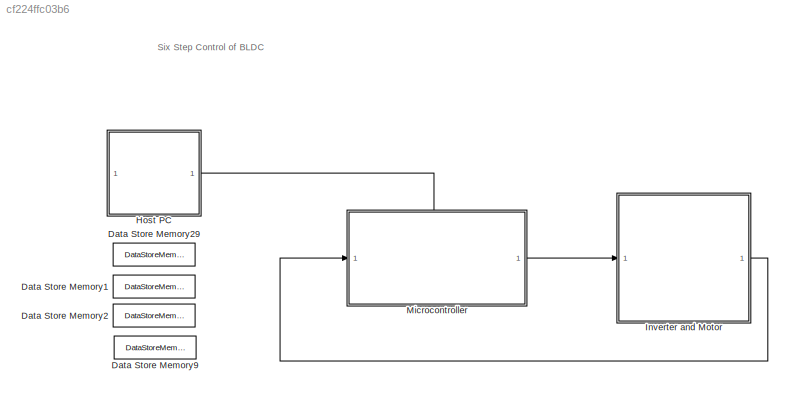
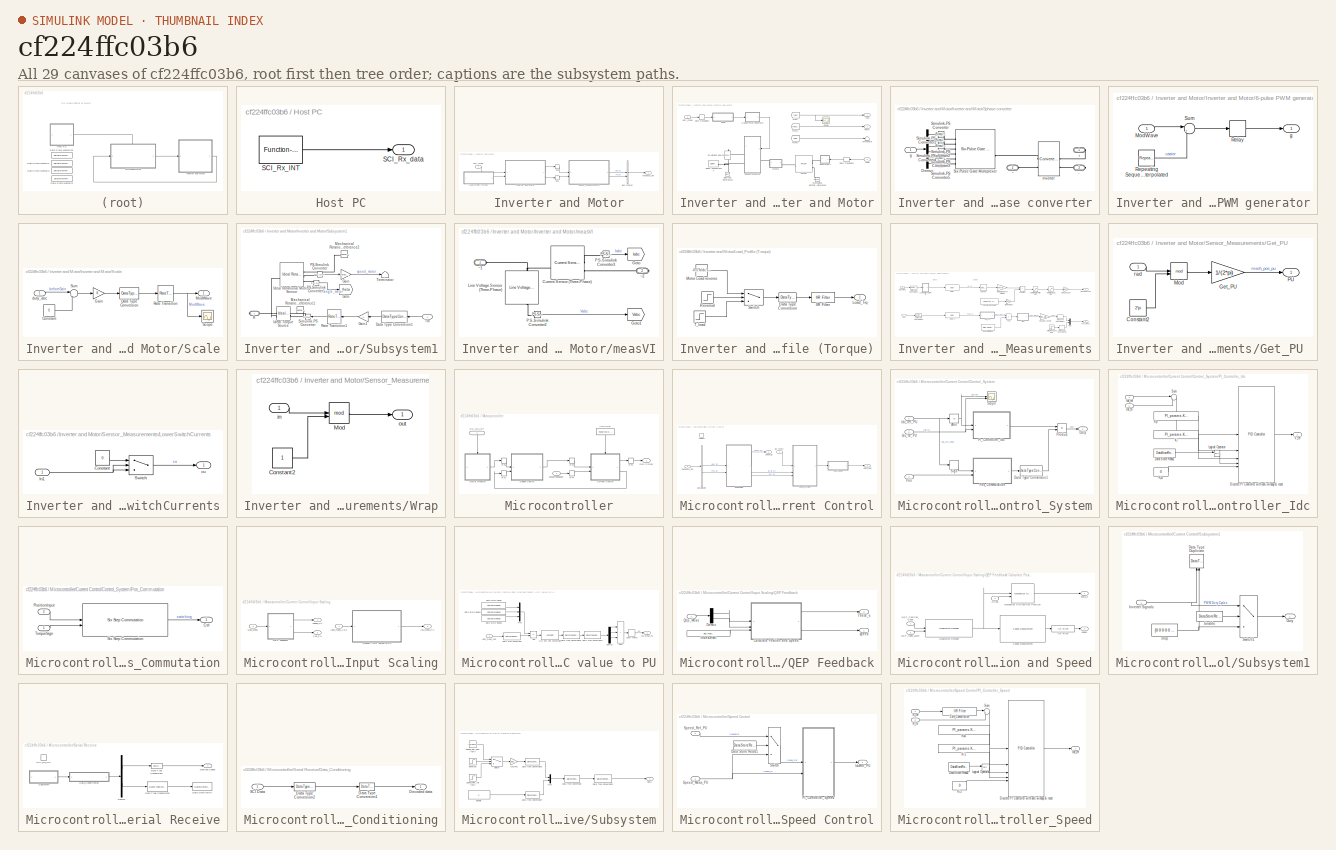
[diagram: thumbnail index - all 29 canvases of the model, root first then tree order]
MODEL slx_cf224ffc03b6
KIND model
CONFIG AbsTol = auto
CONFIG EnableMultiTasking = on
CONFIG FixedStep = auto
CONFIG InitFcn = mcb_bldc_sixstep_f28069mLaunchPad_data;
CONFIG MaxStep = auto
CONFIG MinStep = auto
CONFIG RelTol = 1e-3
CONFIG SampleTimeConstraint = Unconstrained
CONFIG SolverName = FixedStepDiscrete
CONFIG StartTime = 0.0
CONFIG StopTime = 2
BLOCK [DataStoreMemory] Data Store Memory1
  DataStoreName = IaOffset
  InitialValue = inverter.CtSensAOffset
  ShowAdditionalParam = off
BLOCK [DataStoreMemory] Data Store Memory2
  DataStoreName = IbOffset
  InitialValue = inverter.CtSensBOffset
  ShowAdditionalParam = off
BLOCK [DataStoreMemory] Data Store Memory29
  DataStoreName = Enable
  OutDataTypeStr = boolean
  ShowAdditionalParam = off
BLOCK [DataStoreMemory] Data Store Memory9
  DataStoreName = IcOffset
  InitialValue = inverter.CtSensCOffset
  NameLocation = top
  ShowAdditionalParam = off
BLOCK [SubSystem] Host PC
  NameLocation = top
BLOCK [Reference] Host PC/SCI_Rx_INT  REF=simulink/Ports &
Subsystems/Function-Call
Generator
  SourceBlock = simulink/Ports &\nSubsystems/Function-Call\nGenerator
  SourceType = Function-Call Generator
BLOCK [Outport] Host PC/SCI_Rx_data
BLOCK [SubSystem] Inverter and Motor
  RTWSystemCode = Reusable function
BLOCK [BusCreator] Inverter and Motor/Bus Creator
  DisplayOption = bar
  InheritFromInputs = on
  Inputs = 2
BLOCK [Inport] Inverter and Motor/Duty_Cycles
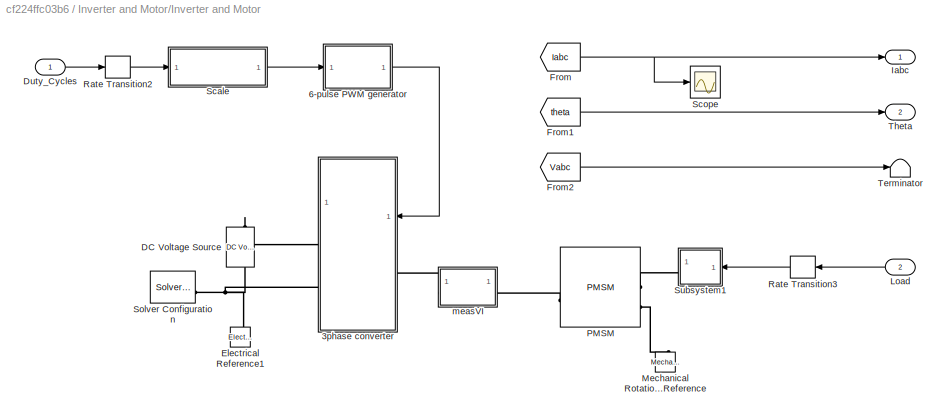
BLOCK [SubSystem] Inverter and Motor/Inverter and Motor
  VariantControl = get_param([bdroot '/Plant'],'Value')=='0'
BLOCK [SubSystem] Inverter and Motor/Inverter and Motor/3phase converter
  NameLocation = top
BLOCK [PMIOPort] Inverter and Motor/Inverter and Motor/3phase converter/+
  Side = Right
BLOCK [PMIOPort] Inverter and Motor/Inverter and Motor/3phase converter/-
  Port = 3
  Side = Right
BLOCK [Demux] Inverter and Motor/Inverter and Motor/3phase converter/Demux
  Outputs = 6
BLOCK [Reference] Inverter and Motor/Inverter and Motor/3phase converter/Inverter  REF=ee_lib/Semiconductors &
Converters/Converters/Converter
(Three-Phase)
  SourceBlock = ee_lib/Semiconductors &\nConverters/Converters/Converter\n(Three-Phase)
  SourceType = Converter\n(Three-Phase)
BLOCK [Reference] Inverter and Motor/Inverter and Motor/3phase converter/Simulink-PS Converter  REF=nesl_utility/Simulink-PS
Converter
  SourceBlock = nesl_utility/Simulink-PS\nConverter
  SourceType = Simulink-PS\nConverter
BLOCK [Reference] Inverter and Motor/Inverter and Motor/3phase converter/Simulink-PS Converter1  REF=nesl_utility/Simulink-PS
Converter
  SourceBlock = nesl_utility/Simulink-PS\nConverter
  SourceType = Simulink-PS\nConverter
BLOCK [Reference] Inverter and Motor/Inverter and Motor/3phase converter/Simulink-PS Converter2  REF=nesl_utility/Simulink-PS
Converter
  SourceBlock = nesl_utility/Simulink-PS\nConverter
  SourceType = Simulink-PS\nConverter
BLOCK [Reference] Inverter and Motor/Inverter and Motor/3phase converter/Simulink-PS Converter3  REF=nesl_utility/Simulink-PS
Converter
  SourceBlock = nesl_utility/Simulink-PS\nConverter
  SourceType = Simulink-PS\nConverter
BLOCK [Reference] Inverter and Motor/Inverter and Motor/3phase converter/Simulink-PS Converter4  REF=nesl_utility/Simulink-PS
Converter
  SourceBlock = nesl_utility/Simulink-PS\nConverter
  SourceType = Simulink-PS\nConverter
BLOCK [Reference] Inverter and Motor/Inverter and Motor/3phase converter/Simulink-PS Converter5  REF=nesl_utility/Simulink-PS
Converter
  SourceBlock = nesl_utility/Simulink-PS\nConverter
  SourceType = Simulink-PS\nConverter
BLOCK [Reference] Inverter and Motor/Inverter and Motor/3phase converter/Six-Pulse Gate Multiplexer  REF=ee_lib/Semiconductors &
Converters/Converters/Six-Pulse Gate
Multiplexer
  SourceBlock = ee_lib/Semiconductors &\nConverters/Converters/Six-Pulse Gate\nMultiplexer
  SourceType = Six-Pulse Gate\nMultiplexer
BLOCK [Inport] Inverter and Motor/Inverter and Motor/3phase converter/g
BLOCK [PMIOPort] Inverter and Motor/Inverter and Motor/3phase converter/~
  Port = 2
  Side = Left
BLOCK [SubSystem] Inverter and Motor/Inverter and Motor/6-pulse PWM generator
BLOCK [Inport] Inverter and Motor/Inverter and Motor/6-pulse PWM generator/ModWave
BLOCK [Relay] Inverter and Motor/Inverter and Motor/6-pulse PWM generator/Relay
BLOCK [Reference] Inverter and Motor/Inverter and Motor/6-pulse PWM generator/Repeating Sequence Interpolated  REF=simulink/Sources/Repeating
Sequence
Interpolated
  SourceBlock = simulink/Sources/Repeating\nSequence\nInterpolated
  SourceType = Repeating Sequence Interpolated
BLOCK [Sum] Inverter and Motor/Inverter and Motor/6-pulse PWM generator/Sum
  Inputs = |+-
BLOCK [Outport] Inverter and Motor/Inverter and Motor/6-pulse PWM generator/g
  NameLocation = top
BLOCK [Reference] Inverter and Motor/Inverter and Motor/DC Voltage Source  REF=fl_lib/Electrical/Electrical Sources/DC Voltage Source
  NameLocation = left
  SourceBlock = fl_lib/Electrical/Electrical Sources/DC Voltage Source
  SourceType = DC Voltage Source
BLOCK [Inport] Inverter and Motor/Inverter and Motor/Duty_Cycles
BLOCK [Reference] Inverter and Motor/Inverter and Motor/Electrical Reference1  REF=fl_lib/Electrical/Electrical Elements/Electrical Reference
  NameLocation = right
  SourceBlock = fl_lib/Electrical/Electrical Elements/Electrical Reference
  SourceType = Electrical Reference
BLOCK [From] Inverter and Motor/Inverter and Motor/From
  GotoTag = Iabc
  TagVisibility = global
BLOCK [From] Inverter and Motor/Inverter and Motor/From1
  GotoTag = theta
  TagVisibility = global
BLOCK [From] Inverter and Motor/Inverter and Motor/From2
  GotoTag = Vabc
  TagVisibility = global
BLOCK [Outport] Inverter and Motor/Inverter and Motor/Iabc
BLOCK [Inport] Inverter and Motor/Inverter and Motor/Load
  Port = 2
BLOCK [Reference] Inverter and Motor/Inverter and Motor/Mechanical Rotational Reference  REF=fl_lib/Mechanical/Rotational Elements/Mechanical
Rotational Reference
  NameLocation = right
  SourceBlock = fl_lib/Mechanical/Rotational Elements/Mechanical\nRotational Reference
  SourceType = Mechanical\nRotational Reference
BLOCK [Reference] Inverter and Motor/Inverter and Motor/PMSM  REF=ee_lib/Electromechanical/Permanent Magnet/PMSM
  SourceBlock = ee_lib/Electromechanical/Permanent Magnet/PMSM
  SourceType = PMSM
BLOCK [RateTransition] Inverter and Motor/Inverter and Motor/Rate Transition2
  Deterministic = off
  OutPortSampleTime = Ts_motor_simscape
BLOCK [RateTransition] Inverter and Motor/Inverter and Motor/Rate Transition3
  Deterministic = off
  NameLocation = top
  OutPortSampleTime = Ts_motor_simscape
BLOCK [SubSystem] Inverter and Motor/Inverter and Motor/Scale
BLOCK [Constant] Inverter and Motor/Inverter and Motor/Scale/Constant
  OutDataTypeStr = single
  SampleTime = Ts_motor_simscape
  Value = 0
BLOCK [DataTypeConversion] Inverter and Motor/Inverter and Motor/Scale/Data Type Conversion
  RndMeth = Floor
  SaturateOnIntegerOverflow = off
BLOCK [Gain] Inverter and Motor/Inverter and Motor/Scale/Gain
BLOCK [Outport] Inverter and Motor/Inverter and Motor/Scale/ModWave
BLOCK [RateTransition] Inverter and Motor/Inverter and Motor/Scale/Rate Transition
BLOCK [Scope] Inverter and Motor/Inverter and Motor/Scale/Scope
  Floating = off
  NumInputPorts = 1
  ScopeSpecificationString = Simulink.scopes.TimeScopeBlockCfg('CurrentConfiguration', extmgr.ConfigurationSet(extmgr.Configuration('Core','General UI',true),extmgr.Configuration('Core','Source UI',true),extmgr.Configuration('Sources','WiredSimulink',true,'DataLoggingVariableName','ScopeData1'),extmgr.Configuration('Visuals','Time Domain',true,'SerializedDisplays',{struct('MinYLimReal','-0.125','MaxYLimReal','1.125','YLabelRe...<+1481ch>
BLOCK [Sum] Inverter and Motor/Inverter and Motor/Scale/Sum
  Inputs = |++
BLOCK [Inport] Inverter and Motor/Inverter and Motor/Scale/duty_abc
BLOCK [Scope] Inverter and Motor/Inverter and Motor/Scope
  Floating = off
  NumInputPorts = 1
  ScopeSpecificationString = Simulink.scopes.TimeScopeBlockCfg('CurrentConfiguration', extmgr.ConfigurationSet(extmgr.Configuration('Core','General UI',true),extmgr.Configuration('Core','Source UI',true),extmgr.Configuration('Sources','WiredSimulink',true,'DataLoggingVariableName','ScopeData3'),extmgr.Configuration('Visuals','Time Domain',true,'SerializedDisplays',{struct('MinYLimReal','-27.85542','MaxYLimReal','27.85744','YL...<+1460ch>
BLOCK [Reference] Inverter and Motor/Inverter and Motor/Solver Configuration  REF=nesl_utility/Solver
Configuration
  SourceBlock = nesl_utility/Solver\nConfiguration
  SourceType = Solver\nConfiguration
BLOCK [SubSystem] Inverter and Motor/Inverter and Motor/Subsystem1
  NameLocation = top
BLOCK [DataTypeConversion] Inverter and Motor/Inverter and Motor/Subsystem1/Data Type Conversion1
  NameLocation = top
  RndMeth = Floor
  SaturateOnIntegerOverflow = off
BLOCK [Gain] Inverter and Motor/Inverter and Motor/Subsystem1/Gain
  Gain = 1/bldc.N_base
BLOCK [Gain] Inverter and Motor/Inverter and Motor/Subsystem1/Gain1
  Gain = -1
  NameLocation = top
BLOCK [Goto] Inverter and Motor/Inverter and Motor/Subsystem1/Goto
  GotoTag = theta
  TagVisibility = global
BLOCK [Reference] Inverter and Motor/Inverter and Motor/Subsystem1/Ideal Rotational Motion Sensor  REF=fl_lib/Mechanical/Mechanical Sensors/Ideal Rotational
Motion Sensor
  SourceBlock = fl_lib/Mechanical/Mechanical Sensors/Ideal Rotational\nMotion Sensor
  SourceType = Ideal Rotational\nMotion Sensor
BLOCK [Reference] Inverter and Motor/Inverter and Motor/Subsystem1/Ideal Torque Source  REF=fl_lib/Mechanical/Mechanical Sources/Ideal Torque Source
  NameLocation = top
  SourceBlock = fl_lib/Mechanical/Mechanical Sources/Ideal Torque Source
  SourceType = Ideal Torque Source
BLOCK [Reference] Inverter and Motor/Inverter and Motor/Subsystem1/Mechanical Rotational Reference1  REF=fl_lib/Mechanical/Rotational Elements/Mechanical
Rotational Reference
  NameLocation = top
  SourceBlock = fl_lib/Mechanical/Rotational Elements/Mechanical\nRotational Reference
  SourceType = Mechanical\nRotational Reference
BLOCK [Reference] Inverter and Motor/Inverter and Motor/Subsystem1/Mechanical Rotational Reference2  REF=fl_lib/Mechanical/Rotational Elements/Mechanical
Rotational Reference
  NameLocation = top
  SourceBlock = fl_lib/Mechanical/Rotational Elements/Mechanical\nRotational Reference
  SourceType = Mechanical\nRotational Reference
BLOCK [Reference] Inverter and Motor/Inverter and Motor/Subsystem1/PS-Simulink Converter  REF=nesl_utility/PS-Simulink
Converter
  SourceBlock = nesl_utility/PS-Simulink\nConverter
  SourceType = PS-Simulink\nConverter
BLOCK [Reference] Inverter and Motor/Inverter and Motor/Subsystem1/PS-Simulink Converter1  REF=nesl_utility/PS-Simulink
Converter
  SourceBlock = nesl_utility/PS-Simulink\nConverter
  SourceType = PS-Simulink\nConverter
BLOCK [PMIOPort] Inverter and Motor/Inverter and Motor/Subsystem1/R 
  Side = Right
BLOCK [RateTransition] Inverter and Motor/Inverter and Motor/Subsystem1/Rate Transition1
  NameLocation = top
BLOCK [Reference] Inverter and Motor/Inverter and Motor/Subsystem1/Simulink-PS Converter  REF=nesl_utility/Simulink-PS
Converter
  NameLocation = top
  SourceBlock = nesl_utility/Simulink-PS\nConverter
  SourceType = Simulink-PS\nConverter
BLOCK [Terminator] Inverter and Motor/Inverter and Motor/Subsystem1/Terminator
BLOCK [Inport] Inverter and Motor/Inverter and Motor/Subsystem1/Tm
BLOCK [Terminator] Inverter and Motor/Inverter and Motor/Terminator
BLOCK [Outport] Inverter and Motor/Inverter and Motor/Theta
  Port = 2
BLOCK [SubSystem] Inverter and Motor/Inverter and Motor/measVI
BLOCK [Reference] Inverter and Motor/Inverter and Motor/measVI/Current Sensor (Three-Phase)  REF=ee_lib/Sensors &
Transducers/Current Sensor
(Three-Phase)
  SourceBlock = ee_lib/Sensors &\nTransducers/Current Sensor\n(Three-Phase)
  SourceType = Current Sensor\n(Three-Phase)
BLOCK [Goto] Inverter and Motor/Inverter and Motor/measVI/Goto
  GotoTag = Iabc
  TagVisibility = global
BLOCK [Goto] Inverter and Motor/Inverter and Motor/measVI/Goto1
  GotoTag = Vabc
  TagVisibility = global
BLOCK [Reference] Inverter and Motor/Inverter and Motor/measVI/Line Voltage Sensor (Three-Phase)  REF=ee_lib/Sensors &
Transducers/Line Voltage Sensor
(Three-Phase)
  NameLocation = right
  SourceBlock = ee_lib/Sensors &\nTransducers/Line Voltage Sensor\n(Three-Phase)
  SourceType = Line Voltage Sensor\n(Three-Phase)
BLOCK [Reference] Inverter and Motor/Inverter and Motor/measVI/PS-Simulink Converter2  REF=nesl_utility/PS-Simulink
Converter
  SourceBlock = nesl_utility/PS-Simulink\nConverter
  SourceType = PS-Simulink\nConverter
BLOCK [Reference] Inverter and Motor/Inverter and Motor/measVI/PS-Simulink Converter3  REF=nesl_utility/PS-Simulink
Converter
  SourceBlock = nesl_utility/PS-Simulink\nConverter
  SourceType = PS-Simulink\nConverter
BLOCK [PMIOPort] Inverter and Motor/Inverter and Motor/measVI/~1
  Side = Left
BLOCK [PMIOPort] Inverter and Motor/Inverter and Motor/measVI/~2
  Port = 2
  Side = Right
BLOCK [SubSystem] Inverter and Motor/Load_Profile (Torque)
BLOCK [DataTypeConversion] Inverter and Motor/Load_Profile (Torque)/Data Type Conversion
  OutDataTypeStr = single
  RndMeth = Floor
  SaturateOnIntegerOverflow = off
BLOCK [Reference] Inverter and Motor/Load_Profile (Torque)/IIR Filter  REF=mcbcontrolslib/IIR Filter
  SourceBlock = mcbcontrolslib/IIR Filter
  SourceType = IIR Filter
BLOCK [Outport] Inverter and Motor/Load_Profile (Torque)/Load_Trq
  VectorParamsAs1DForOutWhenUnconnected = off
BLOCK [Constant] Inverter and Motor/Load_Profile (Torque)/Motor Load reverse 
  OutDataTypeStr = dataType
  SampleTime = -1
  Value = -0.5*bldc.T_rated
BLOCK [Step] Inverter and Motor/Load_Profile (Torque)/Reversal
  NameLocation = top
  Time = 1.2
BLOCK [Switch] Inverter and Motor/Load_Profile (Torque)/Switch
  Criteria = u2 > Threshold
  InputSameDT = off
  SaturateOnIntegerOverflow = off
BLOCK [Step] Inverter and Motor/Load_Profile (Torque)/T_load
  After = 0.5*bldc.T_rated
  Before = 0.05*bldc.T_rated
  SampleTime = Ts_simulink
  Time = 0.8
BLOCK [RateTransition] Inverter and Motor/RT1
  Deterministic = off
  OutPortSampleTime = Ts_simulink
BLOCK [RateTransition] Inverter and Motor/RT3
  Deterministic = off
  OutPortSampleTime = Ts_simulink
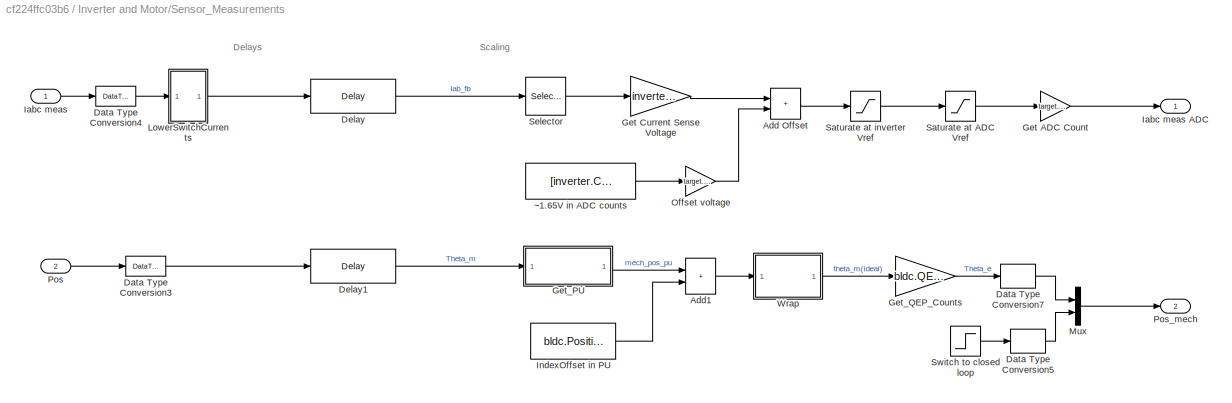
BLOCK [SubSystem] Inverter and Motor/Sensor_Measurements
BLOCK [Sum] Inverter and Motor/Sensor_Measurements/Add Offset
  IconShape = rectangular
  RndMeth = Simplest
BLOCK [Sum] Inverter and Motor/Sensor_Measurements/Add1
  IconShape = rectangular
  RndMeth = Simplest
BLOCK [DataTypeConversion] Inverter and Motor/Sensor_Measurements/Data Type Conversion3
  OutDataTypeStr = single
  RndMeth = Simplest
  SaturateOnIntegerOverflow = off
BLOCK [DataTypeConversion] Inverter and Motor/Sensor_Measurements/Data Type Conversion4
  OutDataTypeStr = single
  RndMeth = Simplest
  SaturateOnIntegerOverflow = off
BLOCK [DataTypeConversion] Inverter and Motor/Sensor_Measurements/Data Type Conversion5
  OutDataTypeStr = uint16
  RndMeth = Simplest
  SaturateOnIntegerOverflow = off
BLOCK [DataTypeConversion] Inverter and Motor/Sensor_Measurements/Data Type Conversion7
  OutDataTypeStr = uint16
  RndMeth = Simplest
  SaturateOnIntegerOverflow = off
BLOCK [Delay] Inverter and Motor/Sensor_Measurements/Delay
  DelayLength = PI_params.delay_Currents
  InputPortMap = u0
BLOCK [Delay] Inverter and Motor/Sensor_Measurements/Delay1
  DelayLength = PI_params.delay_Position
  InputPortMap = u0
BLOCK [Gain] Inverter and Motor/Sensor_Measurements/Get ADC Count
  Gain = target.ADC_MaxCount/target.ADC_Vref
  OutDataTypeStr = uint16
  OutMax = target.ADC_MaxCount
  OutMin = 0
  RndMeth = Simplest
BLOCK [Gain] Inverter and Motor/Sensor_Measurements/Get Current Sense Voltage
  Gain = inverter.ISenseVoltPerAmp
  OutDataTypeStr = Inherit: Same as input
  RndMeth = Simplest
BLOCK [SubSystem] Inverter and Motor/Sensor_Measurements/Get_PU 
BLOCK [Constant] Inverter and Motor/Sensor_Measurements/Get_PU /Constant2
  OutDataTypeStr = single
  SampleTime = -1
  Value = 2*pi
BLOCK [Gain] Inverter and Motor/Sensor_Measurements/Get_PU /Get_PU
  Gain = 1/(2*pi)
  OutDataTypeStr = Inherit: Same as input
  RndMeth = Simplest
BLOCK [Math] Inverter and Motor/Sensor_Measurements/Get_PU /Mod
  Operator = mod
BLOCK [Outport] Inverter and Motor/Sensor_Measurements/Get_PU /PU
  VectorParamsAs1DForOutWhenUnconnected = off
BLOCK [Inport] Inverter and Motor/Sensor_Measurements/Get_PU /rad
BLOCK [Gain] Inverter and Motor/Sensor_Measurements/Get_QEP_Counts
  Gain = bldc.QEPSlits*4
  OutDataTypeStr = uint16
  RndMeth = Simplest
BLOCK [Inport] Inverter and Motor/Sensor_Measurements/Iabc meas
BLOCK [Outport] Inverter and Motor/Sensor_Measurements/Iabc meas ADC
  VectorParamsAs1DForOutWhenUnconnected = off
BLOCK [Constant] Inverter and Motor/Sensor_Measurements/IndexOffset in PU
  OutDataTypeStr = single
  SampleTime = -1
  Value = bldc.PositionOffset
BLOCK [SubSystem] Inverter and Motor/Sensor_Measurements/LowerSwitchCurrents
BLOCK [Constant] Inverter and Motor/Sensor_Measurements/LowerSwitchCurrents/Constant
  Value = 0
BLOCK [Inport] Inverter and Motor/Sensor_Measurements/LowerSwitchCurrents/In1
BLOCK [Switch] Inverter and Motor/Sensor_Measurements/LowerSwitchCurrents/Switch
  Criteria = u2 > Threshold
  InputSameDT = off
  SaturateOnIntegerOverflow = off
BLOCK [Outport] Inverter and Motor/Sensor_Measurements/LowerSwitchCurrents/cu
BLOCK [Mux] Inverter and Motor/Sensor_Measurements/Mux
  DisplayOption = bar
  Inputs = 2
BLOCK [Gain] Inverter and Motor/Sensor_Measurements/Offset voltage
  Gain = target.ADC_Vref / target.ADC_MaxCount
  RndMeth = Simplest
BLOCK [Inport] Inverter and Motor/Sensor_Measurements/Pos
  Port = 2
BLOCK [Outport] Inverter and Motor/Sensor_Measurements/Pos_mech
  Port = 2
BLOCK [Saturate] Inverter and Motor/Sensor_Measurements/Saturate at ADC Vref
  LowerLimit = 0
  UpperLimit = target.ADC_Vref
BLOCK [Saturate] Inverter and Motor/Sensor_Measurements/Saturate at inverter Vref
  LowerLimit = 0
  UpperLimit = inverter.ISenseVref
BLOCK [Selector] Inverter and Motor/Sensor_Measurements/Selector
  IndexOptions = Index vector (dialog)
  Indices = [1 2 3]
  InputPortWidth = 3
  OutputSizes = 1
BLOCK [Step] Inverter and Motor/Sensor_Measurements/Switch to closed loop 
  SampleTime = Ts_motor
  Time = 0.1
BLOCK [SubSystem] Inverter and Motor/Sensor_Measurements/Wrap
BLOCK [Constant] Inverter and Motor/Sensor_Measurements/Wrap/Constant2
  OutDataTypeStr = single
  SampleTime = -1
BLOCK [Math] Inverter and Motor/Sensor_Measurements/Wrap/Mod
  Operator = mod
BLOCK [Inport] Inverter and Motor/Sensor_Measurements/Wrap/in
BLOCK [Outport] Inverter and Motor/Sensor_Measurements/Wrap/out
  VectorParamsAs1DForOutWhenUnconnected = off
BLOCK [Constant] Inverter and Motor/Sensor_Measurements/~1.65V in ADC counts
  OutDataTypeStr = single
  SampleTime = -1
  Value = [inverter.CtSensAOffset inverter.CtSensBOffset  inverter.CtSensCOffset]
BLOCK [Outport] Inverter and Motor/feedback_sim
  VectorParamsAs1DForOutWhenUnconnected = off
BLOCK [SubSystem] Microcontroller
  PortSchema = {"entries":[{"content":{"sides":[{"content":{"connectorIds":["In1"]},"type":"ConnectorPlacement.EquallySpacedRectSide","uuid":"7fcc6993-4b19-4580-b497-5639cbcc9e73"},{"content":{"connectorIds":["Out1"],"side":"RIGHT"},"type":"ConnectorPlacement.EquallySpacedRectSide","uuid":"c7ce9a8d-5ae1-4fef-a58c-ffb2688f7cf9"},{"content":{"connectorIds":["In2"],"side":"TOP"},"type":"ConnectorPlacement.EquallySp...<+245ch>
BLOCK [Reference] Microcontroller/ADCINT1  REF=simulink/Ports &
Subsystems/Function-Call
Generator
  NameLocation = top
  SourceBlock = simulink/Ports &\nSubsystems/Function-Call\nGenerator
  SourceType = Function-Call Generator
BLOCK [SubSystem] Microcontroller/Current Control
  RTWMemSecFuncExecute = code_ramfuncs
  RTWSystemCode = Nonreusable function
BLOCK [TriggerPort] Microcontroller/Current Control/ADCINT1
  PortDimensions = 1
  StatesWhenEnabling = held
  TriggerType = function-call
  VariantControl = Variant
BLOCK [BusSelector] Microcontroller/Current Control/Bus Selector
  OutputSignals = Iabc_fb,Pos_fb
BLOCK [SubSystem] Microcontroller/Current Control/Control_System
BLOCK [Abs] Microcontroller/Current Control/Control_System/Abs
  SaturateOnIntegerOverflow = off
BLOCK [DataTypeConversion] Microcontroller/Current Control/Control_System/Data Type Conversion1
  OutDataTypeStr = dataType
  RndMeth = Simplest
  SaturateOnIntegerOverflow = off
BLOCK [Outport] Microcontroller/Current Control/Control_System/Duty
  VectorParamsAs1DForOutWhenUnconnected = off
BLOCK [Inport] Microcontroller/Current Control/Control_System/Idc_fb_PU
  Port = 2
BLOCK [Inport] Microcontroller/Current Control/Control_System/Idc_ref_PU
BLOCK [SubSystem] Microcontroller/Current Control/Control_System/PI_Controller_Idc
BLOCK [DataStoreRead] Microcontroller/Current Control/Control_System/PI_Controller_Idc/Data Store Read1
  DataStoreName = Enable
  IndexOptions = Index vector (dialog)
  Indices = 1
  OutputSizes = 1
BLOCK [Reference] Microcontroller/Current Control/Control_System/PI_Controller_Idc/Discrete PI Controller with anti-windup & reset  REF=slpidlib/PID Controller
  LibrarySourceBlock = mcbcontrolslib/PI Controller
  SourceBlock = slpidlib/PID Controller
  SourceType = PID 1dof
BLOCK [Inport] Microcontroller/Current Control/Control_System/PI_Controller_Idc/Idc_fb
  Port = 2
BLOCK [Inport] Microcontroller/Current Control/Control_System/PI_Controller_Idc/Idc_ref
  NameLocation = top
BLOCK [Constant] Microcontroller/Current Control/Control_System/PI_Controller_Idc/Ki
  OutDataTypeStr = dataType
  SampleTime = -1
  Value = PI_params.Ki_i*Ts
BLOCK [Constant] Microcontroller/Current Control/Control_System/PI_Controller_Idc/Kp
  OutDataTypeStr = dataType
  SampleTime = -1
  Value = PI_params.Kp_i
BLOCK [Constant] Microcontroller/Current Control/Control_System/PI_Controller_Idc/Kp1
  NameLocation = top
  OutDataTypeStr = dataType
  SampleTime = -1
  Value = 0
BLOCK [Logic] Microcontroller/Current Control/Control_System/PI_Controller_Idc/Logical Operator
  AllPortsSameDT = off
  IconShape = distinctive
  Operator = NOT
  OutDataTypeStr = boolean
BLOCK [Sum] Microcontroller/Current Control/Control_System/PI_Controller_Idc/Sum
  AccumDataTypeStr = Inherit: Same as first input
  Inputs = |+-
  OutDataTypeStr = Inherit: Same as first input
BLOCK [Outport] Microcontroller/Current Control/Control_System/PI_Controller_Idc/V_ref
  VectorParamsAs1DForOutWhenUnconnected = off
BLOCK [Inport] Microcontroller/Current Control/Control_System/Pos
  Port = 3
BLOCK [SubSystem] Microcontroller/Current Control/Control_System/Pos_Commutation
BLOCK [Outport] Microcontroller/Current Control/Control_System/Pos_Commutation/Ctrl
BLOCK [Inport] Microcontroller/Current Control/Control_System/Pos_Commutation/PositionInput
  Port = 2
BLOCK [Reference] Microcontroller/Current Control/Control_System/Pos_Commutation/Six Step Commutation  REF=mcbcontrolslib/Six Step Commutation
  SourceBlock = mcbcontrolslib/Six Step Commutation
  SourceType = Six-Step Commutation
BLOCK [Inport] Microcontroller/Current Control/Control_System/Pos_Commutation/TorqueSign
BLOCK [Product] Microcontroller/Current Control/Control_System/Product
  OutDataTypeStr = Inherit: Same as first input
  RndMeth = Simplest
BLOCK [Scope] Microcontroller/Current Control/Control_System/Scope
  Floating = off
  NumInputPorts = 2
  ScopeSpecificationString = Simulink.scopes.TimeScopeBlockCfg('CurrentConfiguration', extmgr.ConfigurationSet(extmgr.Configuration('Core','General UI',true),extmgr.Configuration('Core','Source UI',true),extmgr.Configuration('Sources','WiredSimulink',true,'DataLoggingVariableName','ScopeData1'),extmgr.Configuration('Visuals','Time Domain',true),extmgr.Configuration('Tools','Plot Navigation',true),extmgr.Configuration('Tools',...<+40ch>
BLOCK [Signum] Microcontroller/Current Control/Control_System/Sign
BLOCK [Outport] Microcontroller/Current Control/Duty Cycles
  InitialOutput = 0
  VectorParamsAs1DForOutWhenUnconnected = off
BLOCK [Inport] Microcontroller/Current Control/Feedback_sim
  Port = 2
BLOCK [Inport] Microcontroller/Current Control/Idc_ref_PU
BLOCK [SubSystem] Microcontroller/Current Control/Input Scaling
BLOCK [SubSystem] Microcontroller/Current Control/Input Scaling/Convert ADC value to PU
BLOCK [Sum] Microcontroller/Current Control/Input Scaling/Convert ADC value to PU/Add
  IconShape = rectangular
  Inputs = -+
BLOCK [DataStoreRead] Microcontroller/Current Control/Input Scaling/Convert ADC value to PU/Data Store Read
  DataStoreName = IaOffset
  IndexOptions = Index vector (dialog)
  Indices = 1
  OutputSizes = 1
BLOCK [DataStoreRead] Microcontroller/Current Control/Input Scaling/Convert ADC value to PU/Data Store Read1
  DataStoreName = IbOffset
  IndexOptions = Index vector (dialog)
  Indices = 1
  OutputSizes = 1
BLOCK [DataStoreRead] Microcontroller/Current Control/Input Scaling/Convert ADC value to PU/Data Store Read2
  DataStoreName = IcOffset
  IndexOptions = Index vector (dialog)
  Indices = 1
  OutputSizes = 1
BLOCK [DataTypeConversion] Microcontroller/Current Control/Input Scaling/Convert ADC value to PU/Data Type Conversion
  ConvertRealWorld = Stored Integer (SI)
  OutDataTypeStr = int32
  RndMeth = Floor
  SaturateOnIntegerOverflow = off
BLOCK [DataTypeConversion] Microcontroller/Current Control/Input Scaling/Convert ADC value to PU/Data Type Conversion1
  OutDataTypeStr = dataType
  RndMeth = Floor
  SaturateOnIntegerOverflow = off
BLOCK [DataTypeConversion] Microcontroller/Current Control/Input Scaling/Convert ADC value to PU/Data Type Conversion3
  ConvertRealWorld = Stored Integer (SI)
  OutDataTypeStr = fixdt(1,32,17)
  RndMeth = Simplest
  SaturateOnIntegerOverflow = off
BLOCK [Demux] Microcontroller/Current Control/Input Scaling/Convert ADC value to PU/Demux
  Outputs = 3
BLOCK [Inport] Microcontroller/Current Control/Input Scaling/Convert ADC value to PU/Iabc_meas_ADC
BLOCK [Outport] Microcontroller/Current Control/Input Scaling/Convert ADC value to PU/Idc_meas_PU
BLOCK [Mux] Microcontroller/Current Control/Input Scaling/Convert ADC value to PU/Mux
  DisplayOption = bar
  Inputs = 3
BLOCK [ArithShift] Microcontroller/Current Control/Input Scaling/Convert ADC value to PU/Q17 per unit conversion
  BitShiftNumber = -6
  InputPortMap = u0
BLOCK [Sum] Microcontroller/Current Control/Input Scaling/Convert ADC value to PU/Sum
  IconShape = rectangular
  Inputs = |+++
BLOCK [UnaryMinus] Microcontroller/Current Control/Input Scaling/Convert ADC value to PU/Unary Minus
BLOCK [Inport] Microcontroller/Current Control/Input Scaling/Iabc_meas_ADC
BLOCK [Outport] Microcontroller/Current Control/Input Scaling/Idc_meas_PU
  Port = 2
  VectorParamsAs1DForOutWhenUnconnected = off
BLOCK [Outport] Microcontroller/Current Control/Input Scaling/Pos_PU
  InitialOutput = 0
  Port = 3
  VectorParamsAs1DForOutWhenUnconnected = off
BLOCK [SubSystem] Microcontroller/Current Control/Input Scaling/QEP Feedback
  TreatAsAtomicUnit = on
BLOCK [SubSystem] Microcontroller/Current Control/Input Scaling/QEP Feedback/ Calculate Position and Speed
BLOCK [Reference] Microcontroller/Current Control/Input Scaling/QEP Feedback/ Calculate Position and Speed/IIR Filter  REF=mcbcontrolslib/IIR Filter
  SourceBlock = mcbcontrolslib/IIR Filter
  SourceType = IIR Filter
BLOCK [Reference] Microcontroller/Current Control/Input Scaling/QEP Feedback/ Calculate Position and Speed/Mechanical to Electrical Position  REF=mcbpositiondecoderlib/Mechanical to Electrical Position
  SourceBlock = mcbpositiondecoderlib/Mechanical to Electrical Position
  SourceType = Mechanical to Electrical Position
BLOCK [Inport] Microcontroller/Current Control/Input Scaling/QEP Feedback/ Calculate Position and Speed/Offset
  Port = 3
BLOCK [Inport] Microcontroller/Current Control/Input Scaling/QEP Feedback/ Calculate Position and Speed/QEP_Index_Latch
  Port = 2
BLOCK [Inport] Microcontroller/Current Control/Input Scaling/QEP Feedback/ Calculate Position and Speed/QEP_Position_Count
BLOCK [Reference] Microcontroller/Current Control/Input Scaling/QEP Feedback/ Calculate Position and Speed/Quadrature Decoder  REF=mcbpositiondecoderlib/Quadrature Decoder
  SourceBlock = mcbpositiondecoderlib/Quadrature Decoder
  SourceType = Quadrature Decoder
BLOCK [Reference] Microcontroller/Current Control/Input Scaling/QEP Feedback/ Calculate Position and Speed/Speed Measurement  REF=mcbpositiondecoderlib/Speed Measurement
  SourceBlock = mcbpositiondecoderlib/Speed Measurement
  SourceType = Speed Measurement
BLOCK [Outport] Microcontroller/Current Control/Input Scaling/QEP Feedback/ Calculate Position and Speed/Theta_e
  VectorParamsAs1DForOutWhenUnconnected = off
BLOCK [Outport] Microcontroller/Current Control/Input Scaling/QEP Feedback/ Calculate Position and Speed/speed
  Port = 2
  VectorParamsAs1DForOutWhenUnconnected = off
BLOCK [Demux] Microcontroller/Current Control/Input Scaling/QEP Feedback/Demux
  Outputs = 2
BLOCK [Constant] Microcontroller/Current Control/Input Scaling/QEP Feedback/IndexOffset
  OutDataTypeStr = dataType
  SampleTime = -1
  Value = bldc.PositionOffset
BLOCK [Inport] Microcontroller/Current Control/Input Scaling/QEP Feedback/Qep_Meas
BLOCK [Outport] Microcontroller/Current Control/Input Scaling/QEP Feedback/Theta_e
  Port = 2
BLOCK [Outport] Microcontroller/Current Control/Input Scaling/QEP Feedback/speed
BLOCK [Inport] Microcontroller/Current Control/Input Scaling/Qep_Meas
  Port = 2
BLOCK [Outport] Microcontroller/Current Control/Input Scaling/speed_PU
  InitialOutput = 0
  VectorParamsAs1DForOutWhenUnconnected = off
BLOCK [Outport] Microcontroller/Current Control/Speed_fb
  InitialOutput = 0
  Port = 2
  VectorParamsAs1DForOutWhenUnconnected = off
BLOCK [SubSystem] Microcontroller/Current Control/Subsystem1
BLOCK [DataTypeDuplicate] Microcontroller/Current Control/Subsystem1/Data Type Duplicate
BLOCK [Outport] Microcontroller/Current Control/Subsystem1/Duty
  VectorParamsAs1DForOutWhenUnconnected = off
BLOCK [DataStoreRead] Microcontroller/Current Control/Subsystem1/Enable
  DataStoreName = Enable
  IndexOptions = Index vector (dialog)
  Indices = 1
  OutputSizes = 1
BLOCK [Inport] Microcontroller/Current Control/Subsystem1/Inverter Signals
BLOCK [Switch] Microcontroller/Current Control/Subsystem1/Switch1
  InputSameDT = off
  RndMeth = Simplest
  SaturateOnIntegerOverflow = off
  Threshold = 0.5
BLOCK [Constant] Microcontroller/Current Control/Subsystem1/stop
  OutDataTypeStr = Inherit: Inherit via back propagation
  Value = [0 0 0 0 0 0]
BLOCK [Outport] Microcontroller/Duty Cycles
BLOCK [RateTransition] Microcontroller/RT1
  Deterministic = off
  NameLocation = top
  OutPortSampleTime = Ts_speed
BLOCK [RateTransition] Microcontroller/RT2
  Deterministic = off
BLOCK [RateTransition] Microcontroller/RT3
  Deterministic = off
BLOCK [RateTransition] Microcontroller/RT4
  Deterministic = off
BLOCK [RateTransition] Microcontroller/RT6
  Deterministic = off
BLOCK [Inport] Microcontroller/SCI_Rx_INT
  NameLocation = top
  Port = 2
BLOCK [SubSystem] Microcontroller/Serial Receive
  RTWMemSecFuncExecute = code_ramfuncs
  SystemSampleTime = 1e-3
BLOCK [DataStoreWrite] Microcontroller/Serial Receive/Data Store Write
  DataStoreName = Enable
  IndexOptions = Index vector (dialog)
  Indices = 1
  OutputSizes = 1
BLOCK [DataTypeConversion] Microcontroller/Serial Receive/Data Type Conversion1
  OutDataTypeStr = dataType
  RndMeth = Simplest
  SaturateOnIntegerOverflow = off
BLOCK [DataTypeConversion] Microcontroller/Serial Receive/Data Type Conversion3
  OutDataTypeStr = boolean
  RndMeth = Simplest
  SaturateOnIntegerOverflow = off
BLOCK [SubSystem] Microcontroller/Serial Receive/Data_Conditioning
BLOCK [DataTypeConversion] Microcontroller/Serial Receive/Data_Conditioning/Data Type Conversion1
  OutDataTypeStr = single
  RndMeth = Simplest
  SaturateOnIntegerOverflow = off
BLOCK [DataTypeConversion] Microcontroller/Serial Receive/Data_Conditioning/Data Type Conversion2
  ConvertRealWorld = Stored Integer (SI)
  OutDataTypeStr = fixdt(1,16,12)
  RndMeth = Simplest
  SaturateOnIntegerOverflow = off
BLOCK [Outport] Microcontroller/Serial Receive/Data_Conditioning/Decoded data
  VectorParamsAs1DForOutWhenUnconnected = off
BLOCK [Inport] Microcontroller/Serial Receive/Data_Conditioning/SCI Data
BLOCK [Demux] Microcontroller/Serial Receive/Demux
  Outputs = 2
BLOCK [Outport] Microcontroller/Serial Receive/Desired Speed
  VectorParamsAs1DForOutWhenUnconnected = off
BLOCK [TriggerPort] Microcontroller/Serial Receive/SCI_Rx_INT
  StatesWhenEnabling = held
  TriggerType = function-call
  VariantControl = Variant
BLOCK [SubSystem] Microcontroller/Serial Receive/Subsystem
BLOCK [Outport] Microcontroller/Serial Receive/Subsystem/Data
BLOCK [DataTypeConversion] Microcontroller/Serial Receive/Subsystem/Data Type Conversion
  OutDataTypeStr = fixdt(1,16,12)
  RndMeth = Simplest
  SaturateOnIntegerOverflow = off
BLOCK [DataTypeConversion] Microcontroller/Serial Receive/Subsystem/Data Type Conversion2
  OutDataTypeStr = single
  RndMeth = Simplest
  SaturateOnIntegerOverflow = off
BLOCK [DataTypeConversion] Microcontroller/Serial Receive/Subsystem/Data Type Conversion3
  ConvertRealWorld = Stored Integer (SI)
  OutDataTypeStr = uint16
  RndMeth = Simplest
  SaturateOnIntegerOverflow = off
BLOCK [DataTypeConversion] Microcontroller/Serial Receive/Subsystem/Data Type Conversion4
  OutDataTypeStr = single
  RndMeth = Simplest
  SaturateOnIntegerOverflow = off
BLOCK [Constant] Microcontroller/Serial Receive/Subsystem/Enable
  OutDataTypeStr = dataType
  SampleTime = -1
BLOCK [Mux] Microcontroller/Serial Receive/Subsystem/Mux
  DisplayOption = bar
  Inputs = 2
BLOCK [Step] Microcontroller/Serial Receive/Subsystem/Reversal
  Time = 1.2
BLOCK [Constant] Microcontroller/Serial Receive/Subsystem/Speed_Ref_Final (rpm)
  OutDataTypeStr = dataType
  SampleTime = -1
  Value = -0.8*bldc.N_base
BLOCK [Step] Microcontroller/Serial Receive/Subsystem/Speed_Ref_Init (rpm)
  After = 0.8*bldc.N_base
  Before = 0.2*bldc.N_base
  Time = 0.5
BLOCK [Switch] Microcontroller/Serial Receive/Subsystem/Switch
  Criteria = u2 > Threshold
  InputSameDT = off
  SaturateOnIntegerOverflow = off
BLOCK [Gain] Microcontroller/Serial Receive/Subsystem/rpm2PU
  Gain = 1/bldc.N_base
  OutDataTypeStr = Inherit: Same as input
  RndMeth = Simplest
BLOCK [SubSystem] Microcontroller/Speed Control
  RTWSystemCode = Reusable function
  SystemSampleTime = Ts_speed
  TreatAsAtomicUnit = on
BLOCK [DataStoreRead] Microcontroller/Speed Control/Data Store Read1
  DataStoreName = Enable
  IndexOptions = Index vector (dialog)
  Indices = 1
  OutputSizes = 1
BLOCK [Outport] Microcontroller/Speed Control/IdcRef_PU
  VectorParamsAs1DForOutWhenUnconnected = off
BLOCK [SubSystem] Microcontroller/Speed Control/PI_Controller_Speed
BLOCK [DataStoreRead] Microcontroller/Speed Control/PI_Controller_Speed/Data Store Read2
  DataStoreName = Enable
  IndexOptions = Index vector (dialog)
  Indices = 1
  OutputSizes = 1
BLOCK [Reference] Microcontroller/Speed Control/PI_Controller_Speed/Discrete PI Controller with anti-windup & reset  REF=slpidlib/PID Controller
  LibrarySourceBlock = mcbcontrolslib/PI Controller
  SourceBlock = slpidlib/PID Controller
  SourceType = PID 1dof
BLOCK [Outport] Microcontroller/Speed Control/PI_Controller_Speed/Idc_ref
  VectorParamsAs1DForOutWhenUnconnected = off
BLOCK [Constant] Microcontroller/Speed Control/PI_Controller_Speed/Ki1
  NameLocation = top
  OutDataTypeStr = dataType
  SampleTime = -1
  Value = PI_params.Ki_speed*Ts_speed
BLOCK [Constant] Microcontroller/Speed Control/PI_Controller_Speed/Ki2
  NameLocation = top
  OutDataTypeStr = dataType
  SampleTime = -1
  Value = 0
BLOCK [Constant] Microcontroller/Speed Control/PI_Controller_Speed/Kp1
  NameLocation = top
  OutDataTypeStr = dataType
  SampleTime = -1
  Value = PI_params.Kp_speed
BLOCK [Logic] Microcontroller/Speed Control/PI_Controller_Speed/Logical Operator
  AllPortsSameDT = off
  IconShape = distinctive
  Operator = NOT
  OutDataTypeStr = boolean
BLOCK [Inport] Microcontroller/Speed Control/PI_Controller_Speed/N_fb
  Port = 2
BLOCK [Inport] Microcontroller/Speed Control/PI_Controller_Speed/N_ref
  NameLocation = top
BLOCK [Sum] Microcontroller/Speed Control/PI_Controller_Speed/Sum
  AccumDataTypeStr = Inherit: Same as first input
  Inputs = |+-
  RndMeth = Round
BLOCK [Reference] Microcontroller/Speed Control/PI_Controller_Speed/Zero_Cancellation  REF=mcbcontrolslib/IIR Filter
  NameLocation = top
  SourceBlock = mcbcontrolslib/IIR Filter
  SourceType = IIR Filter
BLOCK [Inport] Microcontroller/Speed Control/Speed_Meas_PU
  Port = 2
BLOCK [Inport] Microcontroller/Speed Control/Speed_Ref_PU
BLOCK [Switch] Microcontroller/Speed Control/Switch
  Criteria = u2 > Threshold
  InputSameDT = off
  SaturateOnIntegerOverflow = off
  Threshold = 0.5
BLOCK [Inport] Microcontroller/sensorFeedback
ANNOTATION (root): Six Step Control of BLDC
ANNOTATION Inverter and Motor/Sensor_Measurements: Delays
ANNOTATION Inverter and Motor/Sensor_Measurements: Scaling
LINE Host PC/SCI_Rx_INT:1 -> Host PC/SCI_Rx_data:1
LINE Host PC:1 -> Microcontroller:2
LINE Inverter and Motor/Bus Creator:1 -> Inverter and Motor/feedback_sim:1
LINE Inverter and Motor/Duty_Cycles:1 -> Inverter and Motor/Inverter and Motor:1
LINE Inverter and Motor/Inverter and Motor/3phase converter/Demux:1 -> Inverter and Motor/Inverter and Motor/3phase converter/Simulink-PS Converter:1
LINE Inverter and Motor/Inverter and Motor/3phase converter/Demux:2 -> Inverter and Motor/Inverter and Motor/3phase converter/Simulink-PS Converter1:1
LINE Inverter and Motor/Inverter and Motor/3phase converter/Demux:3 -> Inverter and Motor/Inverter and Motor/3phase converter/Simulink-PS Converter2:1
LINE Inverter and Motor/Inverter and Motor/3phase converter/Demux:4 -> Inverter and Motor/Inverter and Motor/3phase converter/Simulink-PS Converter3:1
LINE Inverter and Motor/Inverter and Motor/3phase converter/Demux:5 -> Inverter and Motor/Inverter and Motor/3phase converter/Simulink-PS Converter4:1
LINE Inverter and Motor/Inverter and Motor/3phase converter/Demux:6 -> Inverter and Motor/Inverter and Motor/3phase converter/Simulink-PS Converter5:1
LINE Inverter and Motor/Inverter and Motor/3phase converter/g:1 -> Inverter and Motor/Inverter and Motor/3phase converter/Demux:1
LINE Inverter and Motor/Inverter and Motor/6-pulse PWM generator/ModWave:1 -> Inverter and Motor/Inverter and Motor/6-pulse PWM generator/Sum:1
LINE Inverter and Motor/Inverter and Motor/6-pulse PWM generator/Relay:1 -> Inverter and Motor/Inverter and Motor/6-pulse PWM generator/g:1
LINE Inverter and Motor/Inverter and Motor/6-pulse PWM generator/Repeating Sequence Interpolated:1 -> Inverter and Motor/Inverter and Motor/6-pulse PWM generator/Sum:2
LINE Inverter and Motor/Inverter and Motor/6-pulse PWM generator/Sum:1 -> Inverter and Motor/Inverter and Motor/6-pulse PWM generator/Relay:1
LINE Inverter and Motor/Inverter and Motor/6-pulse PWM generator:1 -> Inverter and Motor/Inverter and Motor/3phase converter:1
LINE Inverter and Motor/Inverter and Motor/Duty_Cycles:1 -> Inverter and Motor/Inverter and Motor/Rate Transition2:1
LINE Inverter and Motor/Inverter and Motor/From1:1 -> Inverter and Motor/Inverter and Motor/Theta:1
LINE Inverter and Motor/Inverter and Motor/From2:1 -> Inverter and Motor/Inverter and Motor/Terminator:1
NET Inverter and Motor/Inverter and Motor/From:1 -> Inverter and Motor/Inverter and Motor/Iabc:1, Inverter and Motor/Inverter and Motor/Scope:1
LINE Inverter and Motor/Inverter and Motor/Load:1 -> Inverter and Motor/Inverter and Motor/Rate Transition3:1
LINE Inverter and Motor/Inverter and Motor/Rate Transition2:1 -> Inverter and Motor/Inverter and Motor/Scale:1
LINE Inverter and Motor/Inverter and Motor/Rate Transition3:1 -> Inverter and Motor/Inverter and Motor/Subsystem1:1
LINE Inverter and Motor/Inverter and Motor/Scale/Constant:1 -> Inverter and Motor/Inverter and Motor/Scale/Sum:2
LINE Inverter and Motor/Inverter and Motor/Scale/Data Type Conversion:1 -> Inverter and Motor/Inverter and Motor/Scale/Rate Transition:1
LINE Inverter and Motor/Inverter and Motor/Scale/Gain:1 -> Inverter and Motor/Inverter and Motor/Scale/Data Type Conversion:1
NET Inverter and Motor/Inverter and Motor/Scale/Rate Transition:1 -> Inverter and Motor/Inverter and Motor/Scale/ModWave:1, Inverter and Motor/Inverter and Motor/Scale/Scope:1
LINE Inverter and Motor/Inverter and Motor/Scale/Sum:1 -> Inverter and Motor/Inverter and Motor/Scale/Gain:1
LINE Inverter and Motor/Inverter and Motor/Scale/duty_abc:1 -> Inverter and Motor/Inverter and Motor/Scale/Sum:1
LINE Inverter and Motor/Inverter and Motor/Scale:1 -> Inverter and Motor/Inverter and Motor/6-pulse PWM generator:1
LINE Inverter and Motor/Inverter and Motor/Subsystem1/Data Type Conversion1:1 -> Inverter and Motor/Inverter and Motor/Subsystem1/Gain1:1
LINE Inverter and Motor/Inverter and Motor/Subsystem1/Gain1:1 -> Inverter and Motor/Inverter and Motor/Subsystem1/Rate Transition1:1
LINE Inverter and Motor/Inverter and Motor/Subsystem1/Gain:1 -> Inverter and Motor/Inverter and Motor/Subsystem1/Terminator:1
LINE Inverter and Motor/Inverter and Motor/Subsystem1/PS-Simulink Converter1:1 -> Inverter and Motor/Inverter and Motor/Subsystem1/Goto:1
LINE Inverter and Motor/Inverter and Motor/Subsystem1/PS-Simulink Converter:1 -> Inverter and Motor/Inverter and Motor/Subsystem1/Gain:1
LINE Inverter and Motor/Inverter and Motor/Subsystem1/Rate Transition1:1 -> Inverter and Motor/Inverter and Motor/Subsystem1/Simulink-PS Converter:1
LINE Inverter and Motor/Inverter and Motor/Subsystem1/Tm:1 -> Inverter and Motor/Inverter and Motor/Subsystem1/Data Type Conversion1:1
LINE Inverter and Motor/Inverter and Motor/measVI/PS-Simulink Converter2:1 -> Inverter and Motor/Inverter and Motor/measVI/Goto1:1
LINE Inverter and Motor/Inverter and Motor/measVI/PS-Simulink Converter3:1 -> Inverter and Motor/Inverter and Motor/measVI/Goto:1
LINE Inverter and Motor/Inverter and Motor:1 -> Inverter and Motor/RT3:1
LINE Inverter and Motor/Inverter and Motor:2 -> Inverter and Motor/RT1:1
LINE Inverter and Motor/Load_Profile (Torque)/Data Type Conversion:1 -> Inverter and Motor/Load_Profile (Torque)/IIR Filter:1
LINE Inverter and Motor/Load_Profile (Torque)/IIR Filter:1 -> Inverter and Motor/Load_Profile (Torque)/Load_Trq:1
LINE Inverter and Motor/Load_Profile (Torque)/Motor Load reverse :1 -> Inverter and Motor/Load_Profile (Torque)/Switch:1
LINE Inverter and Motor/Load_Profile (Torque)/Reversal:1 -> Inverter and Motor/Load_Profile (Torque)/Switch:2
LINE Inverter and Motor/Load_Profile (Torque)/Switch:1 -> Inverter and Motor/Load_Profile (Torque)/Data Type Conversion:1
LINE Inverter and Motor/Load_Profile (Torque)/T_load:1 -> Inverter and Motor/Load_Profile (Torque)/Switch:3
LINE Inverter and Motor/Load_Profile (Torque):1 -> Inverter and Motor/Inverter and Motor:2
LINE Inverter and Motor/RT1:1 -> Inverter and Motor/Sensor_Measurements:2
LINE Inverter and Motor/RT3:1 -> Inverter and Motor/Sensor_Measurements:1
LINE Inverter and Motor/Sensor_Measurements/Add Offset:1 -> Inverter and Motor/Sensor_Measurements/Saturate at inverter Vref:1
LINE Inverter and Motor/Sensor_Measurements/Add1:1 -> Inverter and Motor/Sensor_Measurements/Wrap:1
LINE Inverter and Motor/Sensor_Measurements/Data Type Conversion3:1 -> Inverter and Motor/Sensor_Measurements/Delay1:1
LINE Inverter and Motor/Sensor_Measurements/Data Type Conversion4:1 -> Inverter and Motor/Sensor_Measurements/LowerSwitchCurrents:1
LINE Inverter and Motor/Sensor_Measurements/Data Type Conversion5:1 -> Inverter and Motor/Sensor_Measurements/Mux:2
LINE Inverter and Motor/Sensor_Measurements/Data Type Conversion7:1 -> Inverter and Motor/Sensor_Measurements/Mux:1
LINE Inverter and Motor/Sensor_Measurements/Delay1:1 -> Inverter and Motor/Sensor_Measurements/Get_PU :1
LINE Inverter and Motor/Sensor_Measurements/Delay:1 -> Inverter and Motor/Sensor_Measurements/Selector:1
LINE Inverter and Motor/Sensor_Measurements/Get ADC Count:1 -> Inverter and Motor/Sensor_Measurements/Iabc meas ADC:1
LINE Inverter and Motor/Sensor_Measurements/Get Current Sense Voltage:1 -> Inverter and Motor/Sensor_Measurements/Add Offset:1
LINE Inverter and Motor/Sensor_Measurements/Get_PU /Constant2:1 -> Inverter and Motor/Sensor_Measurements/Get_PU /Mod:2
LINE Inverter and Motor/Sensor_Measurements/Get_PU /Get_PU:1 -> Inverter and Motor/Sensor_Measurements/Get_PU /PU:1
LINE Inverter and Motor/Sensor_Measurements/Get_PU /Mod:1 -> Inverter and Motor/Sensor_Measurements/Get_PU /Get_PU:1
LINE Inverter and Motor/Sensor_Measurements/Get_PU /rad:1 -> Inverter and Motor/Sensor_Measurements/Get_PU /Mod:1
LINE Inverter and Motor/Sensor_Measurements/Get_PU :1 -> Inverter and Motor/Sensor_Measurements/Add1:1
LINE Inverter and Motor/Sensor_Measurements/Get_QEP_Counts:1 -> Inverter and Motor/Sensor_Measurements/Data Type Conversion7:1
LINE Inverter and Motor/Sensor_Measurements/Iabc meas:1 -> Inverter and Motor/Sensor_Measurements/Data Type Conversion4:1
LINE Inverter and Motor/Sensor_Measurements/IndexOffset in PU:1 -> Inverter and Motor/Sensor_Measurements/Add1:2
LINE Inverter and Motor/Sensor_Measurements/LowerSwitchCurrents/Constant:1 -> Inverter and Motor/Sensor_Measurements/LowerSwitchCurrents/Switch:1
NET Inverter and Motor/Sensor_Measurements/LowerSwitchCurrents/In1:1 -> Inverter and Motor/Sensor_Measurements/LowerSwitchCurrents/Switch:2, Inverter and Motor/Sensor_Measurements/LowerSwitchCurrents/Switch:3
LINE Inverter and Motor/Sensor_Measurements/LowerSwitchCurrents/Switch:1 -> Inverter and Motor/Sensor_Measurements/LowerSwitchCurrents/cu:1
LINE Inverter and Motor/Sensor_Measurements/LowerSwitchCurrents:1 -> Inverter and Motor/Sensor_Measurements/Delay:1
LINE Inverter and Motor/Sensor_Measurements/Mux:1 -> Inverter and Motor/Sensor_Measurements/Pos_mech:1
LINE Inverter and Motor/Sensor_Measurements/Offset voltage:1 -> Inverter and Motor/Sensor_Measurements/Add Offset:2
LINE Inverter and Motor/Sensor_Measurements/Pos:1 -> Inverter and Motor/Sensor_Measurements/Data Type Conversion3:1
LINE Inverter and Motor/Sensor_Measurements/Saturate at ADC Vref:1 -> Inverter and Motor/Sensor_Measurements/Get ADC Count:1
LINE Inverter and Motor/Sensor_Measurements/Saturate at inverter Vref:1 -> Inverter and Motor/Sensor_Measurements/Saturate at ADC Vref:1
LINE Inverter and Motor/Sensor_Measurements/Selector:1 -> Inverter and Motor/Sensor_Measurements/Get Current Sense Voltage:1
LINE Inverter and Motor/Sensor_Measurements/Switch to closed loop :1 -> Inverter and Motor/Sensor_Measurements/Data Type Conversion5:1
LINE Inverter and Motor/Sensor_Measurements/Wrap/Constant2:1 -> Inverter and Motor/Sensor_Measurements/Wrap/Mod:2
LINE Inverter and Motor/Sensor_Measurements/Wrap/Mod:1 -> Inverter and Motor/Sensor_Measurements/Wrap/out:1
LINE Inverter and Motor/Sensor_Measurements/Wrap/in:1 -> Inverter and Motor/Sensor_Measurements/Wrap/Mod:1
LINE Inverter and Motor/Sensor_Measurements/Wrap:1 -> Inverter and Motor/Sensor_Measurements/Get_QEP_Counts:1
LINE Inverter and Motor/Sensor_Measurements/~1.65V in ADC counts:1 -> Inverter and Motor/Sensor_Measurements/Offset voltage:1
LINE Inverter and Motor/Sensor_Measurements:1 -> Inverter and Motor/Bus Creator:1
LINE Inverter and Motor/Sensor_Measurements:2 -> Inverter and Motor/Bus Creator:2
LINE Inverter and Motor:1 -> Microcontroller:1
LINE Microcontroller/ADCINT1:1 -> Microcontroller/Current Control:trigger
LINE Microcontroller/Current Control/Bus Selector:1 -> Microcontroller/Current Control/Input Scaling:1
LINE Microcontroller/Current Control/Bus Selector:2 -> Microcontroller/Current Control/Input Scaling:2
NET Microcontroller/Current Control/Control_System/Abs:1 -> Microcontroller/Current Control/Control_System/PI_Controller_Idc:1, Microcontroller/Current Control/Control_System/Scope:1
LINE Microcontroller/Current Control/Control_System/Data Type Conversion1:1 -> Microcontroller/Current Control/Control_System/Product:2
NET Microcontroller/Current Control/Control_System/Idc_fb_PU:1 -> Microcontroller/Current Control/Control_System/PI_Controller_Idc:2, Microcontroller/Current Control/Control_System/Scope:2
NET Microcontroller/Current Control/Control_System/Idc_ref_PU:1 -> Microcontroller/Current Control/Control_System/Abs:1, Microcontroller/Current Control/Control_System/Sign:1
LINE Microcontroller/Current Control/Control_System/PI_Controller_Idc/Data Store Read1:1 -> Microcontroller/Current Control/Control_System/PI_Controller_Idc/Logical Operator:1
LINE Microcontroller/Current Control/Control_System/PI_Controller_Idc/Discrete PI Controller with anti-windup & reset:1 -> Microcontroller/Current Control/Control_System/PI_Controller_Idc/V_ref:1
LINE Microcontroller/Current Control/Control_System/PI_Controller_Idc/Idc_fb:1 -> Microcontroller/Current Control/Control_System/PI_Controller_Idc/Sum:2
LINE Microcontroller/Current Control/Control_System/PI_Controller_Idc/Idc_ref:1 -> Microcontroller/Current Control/Control_System/PI_Controller_Idc/Sum:1
LINE Microcontroller/Current Control/Control_System/PI_Controller_Idc/Ki:1 -> Microcontroller/Current Control/Control_System/PI_Controller_Idc/Discrete PI Controller with anti-windup & reset:3
LINE Microcontroller/Current Control/Control_System/PI_Controller_Idc/Kp1:1 -> Microcontroller/Current Control/Control_System/PI_Controller_Idc/Discrete PI Controller with anti-windup & reset:5
LINE Microcontroller/Current Control/Control_System/PI_Controller_Idc/Kp:1 -> Microcontroller/Current Control/Control_System/PI_Controller_Idc/Discrete PI Controller with anti-windup & reset:2
LINE Microcontroller/Current Control/Control_System/PI_Controller_Idc/Logical Operator:1 -> Microcontroller/Current Control/Control_System/PI_Controller_Idc/Discrete PI Controller with anti-windup & reset:4
LINE Microcontroller/Current Control/Control_System/PI_Controller_Idc/Sum:1 -> Microcontroller/Current Control/Control_System/PI_Controller_Idc/Discrete PI Controller with anti-windup & reset:1
LINE Microcontroller/Current Control/Control_System/PI_Controller_Idc:1 -> Microcontroller/Current Control/Control_System/Product:1
LINE Microcontroller/Current Control/Control_System/Pos:1 -> Microcontroller/Current Control/Control_System/Pos_Commutation:2
LINE Microcontroller/Current Control/Control_System/Pos_Commutation/PositionInput:1 -> Microcontroller/Current Control/Control_System/Pos_Commutation/Six Step Commutation:1
LINE Microcontroller/Current Control/Control_System/Pos_Commutation/Six Step Commutation:1 -> Microcontroller/Current Control/Control_System/Pos_Commutation/Ctrl:1
LINE Microcontroller/Current Control/Control_System/Pos_Commutation/TorqueSign:1 -> Microcontroller/Current Control/Control_System/Pos_Commutation/Six Step Commutation:2
LINE Microcontroller/Current Control/Control_System/Pos_Commutation:1 -> Microcontroller/Current Control/Control_System/Data Type Conversion1:1
LINE Microcontroller/Current Control/Control_System/Product:1 -> Microcontroller/Current Control/Control_System/Duty:1
LINE Microcontroller/Current Control/Control_System/Sign:1 -> Microcontroller/Current Control/Control_System/Pos_Commutation:1
LINE Microcontroller/Current Control/Control_System:1 -> Microcontroller/Current Control/Subsystem1:1
LINE Microcontroller/Current Control/Feedback_sim:1 -> Microcontroller/Current Control/Bus Selector:1
LINE Microcontroller/Current Control/Idc_ref_PU:1 -> Microcontroller/Current Control/Control_System:1
LINE Microcontroller/Current Control/Input Scaling/Convert ADC value to PU/Add:1 -> Microcontroller/Current Control/Input Scaling/Convert ADC value to PU/Q17 per unit conversion:1
LINE Microcontroller/Current Control/Input Scaling/Convert ADC value to PU/Data Store Read1:1 -> Microcontroller/Current Control/Input Scaling/Convert ADC value to PU/Mux:2
LINE Microcontroller/Current Control/Input Scaling/Convert ADC value to PU/Data Store Read2:1 -> Microcontroller/Current Control/Input Scaling/Convert ADC value to PU/Mux:3
LINE Microcontroller/Current Control/Input Scaling/Convert ADC value to PU/Data Store Read:1 -> Microcontroller/Current Control/Input Scaling/Convert ADC value to PU/Mux:1
LINE Microcontroller/Current Control/Input Scaling/Convert ADC value to PU/Data Type Conversion1:1 -> Microcontroller/Current Control/Input Scaling/Convert ADC value to PU/Demux:1
LINE Microcontroller/Current Control/Input Scaling/Convert ADC value to PU/Data Type Conversion3:1 -> Microcontroller/Current Control/Input Scaling/Convert ADC value to PU/Data Type Conversion1:1
LINE Microcontroller/Current Control/Input Scaling/Convert ADC value to PU/Data Type Conversion:1 -> Microcontroller/Current Control/Input Scaling/Convert ADC value to PU/Add:2
LINE Microcontroller/Current Control/Input Scaling/Convert ADC value to PU/Demux:1 -> Microcontroller/Current Control/Input Scaling/Convert ADC value to PU/Sum:1
LINE Microcontroller/Current Control/Input Scaling/Convert ADC value to PU/Demux:2 -> Microcontroller/Current Control/Input Scaling/Convert ADC value to PU/Sum:2
LINE Microcontroller/Current Control/Input Scaling/Convert ADC value to PU/Demux:3 -> Microcontroller/Current Control/Input Scaling/Convert ADC value to PU/Sum:3
LINE Microcontroller/Current Control/Input Scaling/Convert ADC value to PU/Iabc_meas_ADC:1 -> Microcontroller/Current Control/Input Scaling/Convert ADC value to PU/Data Type Conversion:1
LINE Microcontroller/Current Control/Input Scaling/Convert ADC value to PU/Mux:1 -> Microcontroller/Current Control/Input Scaling/Convert ADC value to PU/Add:1
LINE Microcontroller/Current Control/Input Scaling/Convert ADC value to PU/Q17 per unit conversion:1 -> Microcontroller/Current Control/Input Scaling/Convert ADC value to PU/Data Type Conversion3:1
LINE Microcontroller/Current Control/Input Scaling/Convert ADC value to PU/Sum:1 -> Microcontroller/Current Control/Input Scaling/Convert ADC value to PU/Unary Minus:1
LINE Microcontroller/Current Control/Input Scaling/Convert ADC value to PU/Unary Minus:1 -> Microcontroller/Current Control/Input Scaling/Convert ADC value to PU/Idc_meas_PU:1
LINE Microcontroller/Current Control/Input Scaling/Convert ADC value to PU:1 -> Microcontroller/Current Control/Input Scaling/Idc_meas_PU:1
LINE Microcontroller/Current Control/Input Scaling/Iabc_meas_ADC:1 -> Microcontroller/Current Control/Input Scaling/Convert ADC value to PU:1
LINE Microcontroller/Current Control/Input Scaling/QEP Feedback/ Calculate Position and Speed/IIR Filter:1 -> Microcontroller/Current Control/Input Scaling/QEP Feedback/ Calculate Position and Speed/speed:1
LINE Microcontroller/Current Control/Input Scaling/QEP Feedback/ Calculate Position and Speed/Mechanical to Electrical Position:1 -> Microcontroller/Current Control/Input Scaling/QEP Feedback/ Calculate Position and Speed/Theta_e:1
LINE Microcontroller/Current Control/Input Scaling/QEP Feedback/ Calculate Position and Speed/Offset:1 -> Microcontroller/Current Control/Input Scaling/QEP Feedback/ Calculate Position and Speed/Mechanical to Electrical Position:2
LINE Microcontroller/Current Control/Input Scaling/QEP Feedback/ Calculate Position and Speed/QEP_Index_Latch:1 -> Microcontroller/Current Control/Input Scaling/QEP Feedback/ Calculate Position and Speed/Quadrature Decoder:2
LINE Microcontroller/Current Control/Input Scaling/QEP Feedback/ Calculate Position and Speed/QEP_Position_Count:1 -> Microcontroller/Current Control/Input Scaling/QEP Feedback/ Calculate Position and Speed/Quadrature Decoder:1
NET Microcontroller/Current Control/Input Scaling/QEP Feedback/ Calculate Position and Speed/Quadrature Decoder:1 -> Microcontroller/Current Control/Input Scaling/QEP Feedback/ Calculate Position and Speed/Mechanical to Electrical Position:1, Microcontroller/Current Control/Input Scaling/QEP Feedback/ Calculate Position and Speed/Speed Measurement:1
LINE Microcontroller/Current Control/Input Scaling/QEP Feedback/ Calculate Position and Speed/Speed Measurement:1 -> Microcontroller/Current Control/Input Scaling/QEP Feedback/ Calculate Position and Speed/IIR Filter:1
LINE Microcontroller/Current Control/Input Scaling/QEP Feedback/ Calculate Position and Speed:1 -> Microcontroller/Current Control/Input Scaling/QEP Feedback/Theta_e:1
LINE Microcontroller/Current Control/Input Scaling/QEP Feedback/ Calculate Position and Speed:2 -> Microcontroller/Current Control/Input Scaling/QEP Feedback/speed:1
LINE Microcontroller/Current Control/Input Scaling/QEP Feedback/Demux:1 -> Microcontroller/Current Control/Input Scaling/QEP Feedback/ Calculate Position and Speed:1
LINE Microcontroller/Current Control/Input Scaling/QEP Feedback/Demux:2 -> Microcontroller/Current Control/Input Scaling/QEP Feedback/ Calculate Position and Speed:2
LINE Microcontroller/Current Control/Input Scaling/QEP Feedback/IndexOffset:1 -> Microcontroller/Current Control/Input Scaling/QEP Feedback/ Calculate Position and Speed:3
LINE Microcontroller/Current Control/Input Scaling/QEP Feedback/Qep_Meas:1 -> Microcontroller/Current Control/Input Scaling/QEP Feedback/Demux:1
LINE Microcontroller/Current Control/Input Scaling/QEP Feedback:1 -> Microcontroller/Current Control/Input Scaling/speed_PU:1
LINE Microcontroller/Current Control/Input Scaling/QEP Feedback:2 -> Microcontroller/Current Control/Input Scaling/Pos_PU:1
LINE Microcontroller/Current Control/Input Scaling/Qep_Meas:1 -> Microcontroller/Current Control/Input Scaling/QEP Feedback:1
LINE Microcontroller/Current Control/Input Scaling:1 -> Microcontroller/Current Control/Speed_fb:1
LINE Microcontroller/Current Control/Input Scaling:2 -> Microcontroller/Current Control/Control_System:2
LINE Microcontroller/Current Control/Input Scaling:3 -> Microcontroller/Current Control/Control_System:3
LINE Microcontroller/Current Control/Subsystem1/Enable:1 -> Microcontroller/Current Control/Subsystem1/Switch1:2
NET Microcontroller/Current Control/Subsystem1/Inverter Signals:1 -> Microcontroller/Current Control/Subsystem1/Data Type Duplicate:1, Microcontroller/Current Control/Subsystem1/Switch1:1
LINE Microcontroller/Current Control/Subsystem1/Switch1:1 -> Microcontroller/Current Control/Subsystem1/Duty:1
NET Microcontroller/Current Control/Subsystem1/stop:1 -> Microcontroller/Current Control/Subsystem1/Data Type Duplicate:2, Microcontroller/Current Control/Subsystem1/Switch1:3
LINE Microcontroller/Current Control/Subsystem1:1 -> Microcontroller/Current Control/Duty Cycles:1
LINE Microcontroller/Current Control:1 -> Microcontroller/RT3:1
LINE Microcontroller/Current Control:2 -> Microcontroller/RT1:1
LINE Microcontroller/RT1:1 -> Microcontroller/Speed Control:2
LINE Microcontroller/RT2:1 -> Microcontroller/Current Control:1
LINE Microcontroller/RT3:1 -> Microcontroller/Duty Cycles:1
LINE Microcontroller/RT4:1 -> Microcontroller/Current Control:2
LINE Microcontroller/RT6:1 -> Microcontroller/Speed Control:1
LINE Microcontroller/SCI_Rx_INT:1 -> Microcontroller/Serial Receive:trigger
LINE Microcontroller/Serial Receive/Data Type Conversion1:1 -> Microcontroller/Serial Receive/Desired Speed:1
LINE Microcontroller/Serial Receive/Data Type Conversion3:1 -> Microcontroller/Serial Receive/Data Store Write:1
LINE Microcontroller/Serial Receive/Data_Conditioning/Data Type Conversion1:1 -> Microcontroller/Serial Receive/Data_Conditioning/Decoded data:1
LINE Microcontroller/Serial Receive/Data_Conditioning/Data Type Conversion2:1 -> Microcontroller/Serial Receive/Data_Conditioning/Data Type Conversion1:1
LINE Microcontroller/Serial Receive/Data_Conditioning/SCI Data:1 -> Microcontroller/Serial Receive/Data_Conditioning/Data Type Conversion2:1
LINE Microcontroller/Serial Receive/Data_Conditioning:1 -> Microcontroller/Serial Receive/Demux:1
LINE Microcontroller/Serial Receive/Demux:1 -> Microcontroller/Serial Receive/Data Type Conversion1:1
LINE Microcontroller/Serial Receive/Demux:2 -> Microcontroller/Serial Receive/Data Type Conversion3:1
LINE Microcontroller/Serial Receive/Subsystem/Data Type Conversion2:1 -> Microcontroller/Serial Receive/Subsystem/Mux:1
LINE Microcontroller/Serial Receive/Subsystem/Data Type Conversion3:1 -> Microcontroller/Serial Receive/Subsystem/Data:1
LINE Microcontroller/Serial Receive/Subsystem/Data Type Conversion4:1 -> Microcontroller/Serial Receive/Subsystem/Mux:2
LINE Microcontroller/Serial Receive/Subsystem/Data Type Conversion:1 -> Microcontroller/Serial Receive/Subsystem/Data Type Conversion3:1
LINE Microcontroller/Serial Receive/Subsystem/Enable:1 -> Microcontroller/Serial Receive/Subsystem/Data Type Conversion4:1
LINE Microcontroller/Serial Receive/Subsystem/Mux:1 -> Microcontroller/Serial Receive/Subsystem/Data Type Conversion:1
LINE Microcontroller/Serial Receive/Subsystem/Reversal:1 -> Microcontroller/Serial Receive/Subsystem/Switch:2
LINE Microcontroller/Serial Receive/Subsystem/Speed_Ref_Final (rpm):1 -> Microcontroller/Serial Receive/Subsystem/Switch:1
LINE Microcontroller/Serial Receive/Subsystem/Speed_Ref_Init (rpm):1 -> Microcontroller/Serial Receive/Subsystem/Switch:3
LINE Microcontroller/Serial Receive/Subsystem/Switch:1 -> Microcontroller/Serial Receive/Subsystem/rpm2PU:1
LINE Microcontroller/Serial Receive/Subsystem/rpm2PU:1 -> Microcontroller/Serial Receive/Subsystem/Data Type Conversion2:1
LINE Microcontroller/Serial Receive/Subsystem:1 -> Microcontroller/Serial Receive/Data_Conditioning:1
LINE Microcontroller/Serial Receive:1 -> Microcontroller/RT6:1
LINE Microcontroller/Speed Control/Data Store Read1:1 -> Microcontroller/Speed Control/Switch:2
LINE Microcontroller/Speed Control/PI_Controller_Speed/Data Store Read2:1 -> Microcontroller/Speed Control/PI_Controller_Speed/Logical Operator:1
LINE Microcontroller/Speed Control/PI_Controller_Speed/Discrete PI Controller with anti-windup & reset:1 -> Microcontroller/Speed Control/PI_Controller_Speed/Idc_ref:1
LINE Microcontroller/Speed Control/PI_Controller_Speed/Ki1:1 -> Microcontroller/Speed Control/PI_Controller_Speed/Discrete PI Controller with anti-windup & reset:3
LINE Microcontroller/Speed Control/PI_Controller_Speed/Ki2:1 -> Microcontroller/Speed Control/PI_Controller_Speed/Discrete PI Controller with anti-windup & reset:5
LINE Microcontroller/Speed Control/PI_Controller_Speed/Kp1:1 -> Microcontroller/Speed Control/PI_Controller_Speed/Discrete PI Controller with anti-windup & reset:2
LINE Microcontroller/Speed Control/PI_Controller_Speed/Logical Operator:1 -> Microcontroller/Speed Control/PI_Controller_Speed/Discrete PI Controller with anti-windup & reset:4
LINE Microcontroller/Speed Control/PI_Controller_Speed/N_fb:1 -> Microcontroller/Speed Control/PI_Controller_Speed/Sum:2
LINE Microcontroller/Speed Control/PI_Controller_Speed/N_ref:1 -> Microcontroller/Speed Control/PI_Controller_Speed/Zero_Cancellation:1
LINE Microcontroller/Speed Control/PI_Controller_Speed/Sum:1 -> Microcontroller/Speed Control/PI_Controller_Speed/Discrete PI Controller with anti-windup & reset:1
LINE Microcontroller/Speed Control/PI_Controller_Speed/Zero_Cancellation:1 -> Microcontroller/Speed Control/PI_Controller_Speed/Sum:1
LINE Microcontroller/Speed Control/PI_Controller_Speed:1 -> Microcontroller/Speed Control/IdcRef_PU:1
NET Microcontroller/Speed Control/Speed_Meas_PU:1 -> Microcontroller/Speed Control/PI_Controller_Speed:2, Microcontroller/Speed Control/Switch:3
LINE Microcontroller/Speed Control/Speed_Ref_PU:1 -> Microcontroller/Speed Control/Switch:1
LINE Microcontroller/Speed Control/Switch:1 -> Microcontroller/Speed Control/PI_Controller_Speed:1
LINE Microcontroller/Speed Control:1 -> Microcontroller/RT2:1
LINE Microcontroller/sensorFeedback:1 -> Microcontroller/RT4:1
LINE Microcontroller:1 -> Inverter and Motor:1
PLINE Inverter and Motor/Inverter and Motor/3phase converter/+:RConn1 -- Inverter and Motor/Inverter and Motor/3phase converter/Inverter:RConn1
PLINE Inverter and Motor/Inverter and Motor/3phase converter/-:RConn1 -- Inverter and Motor/Inverter and Motor/3phase converter/Inverter:RConn2
PLINE Inverter and Motor/Inverter and Motor/3phase converter/Inverter:LConn1 -- Inverter and Motor/Inverter and Motor/3phase converter/Six-Pulse Gate Multiplexer:RConn1
PLINE Inverter and Motor/Inverter and Motor/3phase converter/Inverter:LConn2 -- Inverter and Motor/Inverter and Motor/3phase converter/~:RConn1
PLINE Inverter and Motor/Inverter and Motor/3phase converter/Simulink-PS Converter1:RConn1 -- Inverter and Motor/Inverter and Motor/3phase converter/Six-Pulse Gate Multiplexer:LConn2
PLINE Inverter and Motor/Inverter and Motor/3phase converter/Simulink-PS Converter2:RConn1 -- Inverter and Motor/Inverter and Motor/3phase converter/Six-Pulse Gate Multiplexer:LConn3
PLINE Inverter and Motor/Inverter and Motor/3phase converter/Simulink-PS Converter3:RConn1 -- Inverter and Motor/Inverter and Motor/3phase converter/Six-Pulse Gate Multiplexer:LConn4
PLINE Inverter and Motor/Inverter and Motor/3phase converter/Simulink-PS Converter4:RConn1 -- Inverter and Motor/Inverter and Motor/3phase converter/Six-Pulse Gate Multiplexer:LConn5
PLINE Inverter and Motor/Inverter and Motor/3phase converter/Simulink-PS Converter5:RConn1 -- Inverter and Motor/Inverter and Motor/3phase converter/Six-Pulse Gate Multiplexer:LConn6
PLINE Inverter and Motor/Inverter and Motor/3phase converter/Simulink-PS Converter:RConn1 -- Inverter and Motor/Inverter and Motor/3phase converter/Six-Pulse Gate Multiplexer:LConn1
PLINE Inverter and Motor/Inverter and Motor/3phase converter:LConn1 -- Inverter and Motor/Inverter and Motor/measVI:LConn1
PLINE Inverter and Motor/Inverter and Motor/3phase converter:RConn1 -- Inverter and Motor/Inverter and Motor/DC Voltage Source:LConn1
PNET net1: Inverter and Motor/Inverter and Motor/3phase converter:RConn2 -- Inverter and Motor/Inverter and Motor/DC Voltage Source:RConn1 -- Inverter and Motor/Inverter and Motor/Electrical Reference1:LConn1 -- Inverter and Motor/Inverter and Motor/Solver Configuration:RConn1
PLINE Inverter and Motor/Inverter and Motor/Mechanical Rotational Reference:LConn1 -- Inverter and Motor/Inverter and Motor/PMSM:RConn2
PLINE Inverter and Motor/Inverter and Motor/PMSM:LConn1 -- Inverter and Motor/Inverter and Motor/measVI:RConn1
PLINE Inverter and Motor/Inverter and Motor/PMSM:RConn1 -- Inverter and Motor/Inverter and Motor/Subsystem1:RConn1
PNET net2: Inverter and Motor/Inverter and Motor/Subsystem1/Ideal Rotational Motion Sensor:LConn1 -- Inverter and Motor/Inverter and Motor/Subsystem1/Ideal Torque Source:LConn1 -- Inverter and Motor/Inverter and Motor/Subsystem1/R :RConn1
PLINE Inverter and Motor/Inverter and Motor/Subsystem1/Ideal Rotational Motion Sensor:RConn1 -- Inverter and Motor/Inverter and Motor/Subsystem1/Mechanical Rotational Reference2:LConn1
PLINE Inverter and Motor/Inverter and Motor/Subsystem1/Ideal Rotational Motion Sensor:RConn2 -- Inverter and Motor/Inverter and Motor/Subsystem1/PS-Simulink Converter:LConn1
PLINE Inverter and Motor/Inverter and Motor/Subsystem1/Ideal Rotational Motion Sensor:RConn3 -- Inverter and Motor/Inverter and Motor/Subsystem1/PS-Simulink Converter1:LConn1
PLINE Inverter and Motor/Inverter and Motor/Subsystem1/Ideal Torque Source:RConn1 -- Inverter and Motor/Inverter and Motor/Subsystem1/Simulink-PS Converter:RConn1
PLINE Inverter and Motor/Inverter and Motor/Subsystem1/Ideal Torque Source:RConn2 -- Inverter and Motor/Inverter and Motor/Subsystem1/Mechanical Rotational Reference1:LConn1
PNET net3: Inverter and Motor/Inverter and Motor/measVI/Current Sensor (Three-Phase):LConn1 -- Inverter and Motor/Inverter and Motor/measVI/Line Voltage Sensor (Three-Phase):LConn1 -- Inverter and Motor/Inverter and Motor/measVI/~1:RConn1
PLINE Inverter and Motor/Inverter and Motor/measVI/Current Sensor (Three-Phase):RConn1 -- Inverter and Motor/Inverter and Motor/measVI/PS-Simulink Converter3:LConn1
PLINE Inverter and Motor/Inverter and Motor/measVI/Current Sensor (Three-Phase):RConn2 -- Inverter and Motor/Inverter and Motor/measVI/~2:RConn1
PLINE Inverter and Motor/Inverter and Motor/measVI/Line Voltage Sensor (Three-Phase):RConn1 -- Inverter and Motor/Inverter and Motor/measVI/PS-Simulink Converter2:LConn1
note: NET lines group one-source signal fan-out (src -> all destinations, sorted); 1:1 wires keep LINE; PNET lines group multi-terminal physical nets as a canonical sorted terminal list (undirected conserving connections); 2-terminal nets keep the pairwise PLINE form
